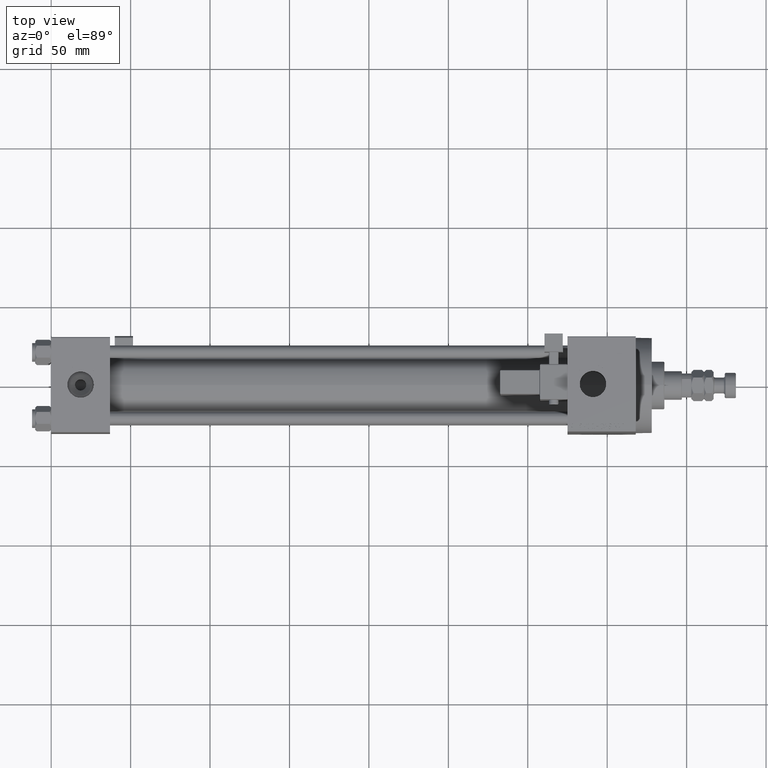
[diagram: clean part render]
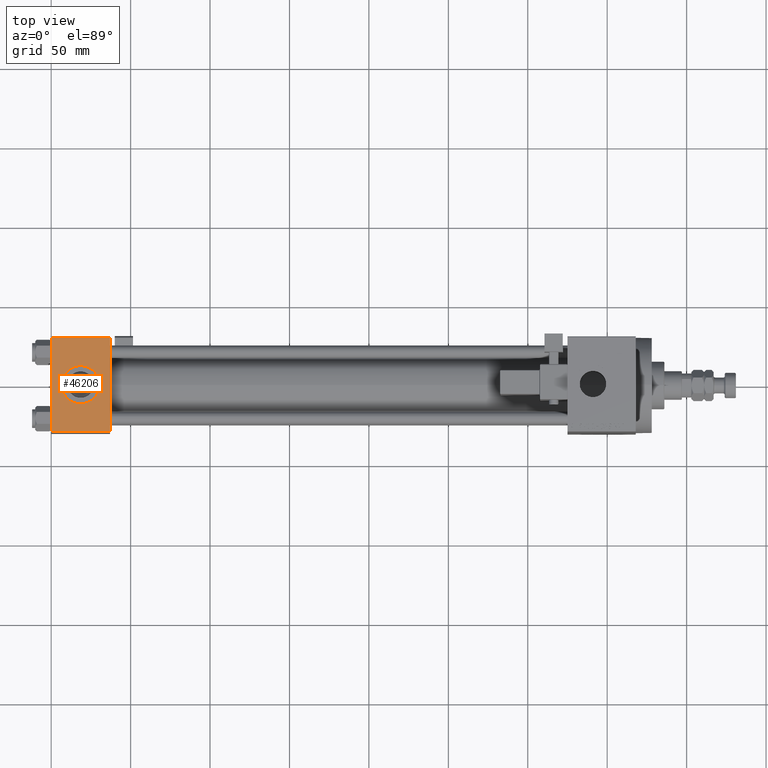
[diagram: same view with one face highlighted and labeled with its STEP entity id]
A machine part, top view. The second image highlights one B-rep face of the part: STEP entity #46206.
In plain terms, the highlighted planar face has unit normal (0, 0, -1).
Its self-contained STEP definition (entity closure, byte-faithful):
#2489 = ORIENTED_EDGE ( 'NONE', *, *, #4666, .T. ) ;
#3032 = AXIS2_PLACEMENT_3D ( 'NONE', #35623, #34855, #7605 ) ;
#4477 = CARTESIAN_POINT ( 'NONE',  ( 37.00000000000000000, 29.99999999999999289, 30.00000000000000000 ) ) ;
#4666 = EDGE_CURVE ( 'NONE', #24122, #18341, #21812, .T. ) ;
#5276 = DIRECTION ( 'NONE',  ( -1.000000000000000000, 0.000000000000000000, 0.000000000000000000 ) ) ;
#6316 = DIRECTION ( 'NONE',  ( 0.000000000000000000, 0.000000000000000000, 1.000000000000000000 ) ) ;
#6344 = VECTOR ( 'NONE', #21043, 1000.000000000000000 ) ;
#6839 = CARTESIAN_POINT ( 'NONE',  ( 37.00000000000000000, -29.50000000000000000, 29.99999999999999289 ) ) ;
#7528 = VERTEX_POINT ( 'NONE', #43038 ) ;
#7605 = DIRECTION ( 'NONE',  ( 1.000000000000000000, 0.000000000000000000, 0.000000000000000000 ) ) ;
#7715 = VECTOR ( 'NONE', #5276, 1000.000000000000000 ) ;
#8256 = EDGE_CURVE ( 'NONE', #18341, #20610, #34871, .T. ) ;
#13385 = PLANE ( 'NONE',  #30353 ) ;
#13564 = ORIENTED_EDGE ( 'NONE', *, *, #36033, .T. ) ;
#13769 = VERTEX_POINT ( 'NONE', #26151 ) ;
#14539 = EDGE_LOOP ( 'NONE', ( #2489, #38414, #16476, #13564 ) ) ;
#16476 = ORIENTED_EDGE ( 'NONE', *, *, #43598, .F. ) ;
#18341 = VERTEX_POINT ( 'NONE', #21692 ) ;
#18763 = CIRCLE ( 'NONE', #3032, 12.00000000000000000 ) ;
#18768 = AXIS2_PLACEMENT_3D ( 'NONE', #34608, #6316, #41889 ) ;
#20610 = VERTEX_POINT ( 'NONE', #43949 ) ;
#21043 = DIRECTION ( 'NONE',  ( 0.000000000000000000, -1.000000000000000000, -1.156482317317871725E-16 ) ) ;
#21692 = CARTESIAN_POINT ( 'NONE',  ( 0.000000000000000000, -29.49999999999998579, 29.99999999999999289 ) ) ;
#21812 = LINE ( 'NONE', #45978, #26457 ) ;
#23860 = DIRECTION ( 'NONE',  ( 0.000000000000000000, 1.156482317317871725E-16, -1.000000000000000000 ) ) ;
#24122 = VERTEX_POINT ( 'NONE', #46098 ) ;
#24191 = VERTEX_POINT ( 'NONE', #41690 ) ;
#24985 = ORIENTED_EDGE ( 'NONE', *, *, #43369, .F. ) ;
#25576 = FACE_BOUND ( 'NONE', #47812, .T. ) ;
#26151 = CARTESIAN_POINT ( 'NONE',  ( 37.00000000000000000, 29.49999999999999289, 30.00000000000000000 ) ) ;
#26457 = VECTOR ( 'NONE', #37675, 1000.000000000000000 ) ;
#28022 = CARTESIAN_POINT ( 'NONE',  ( 37.00000000000000000, 29.99999999999999289, 30.00000000000000000 ) ) ;
#30353 = AXIS2_PLACEMENT_3D ( 'NONE', #28022, #23860, #33378 ) ;
#32751 = LINE ( 'NONE', #4477, #6344 ) ;
#32790 = LINE ( 'NONE', #48615, #7715 ) ;
#33378 = DIRECTION ( 'NONE',  ( 0.000000000000000000, 1.000000000000000000, 1.156482317317871725E-16 ) ) ;
#34608 = CARTESIAN_POINT ( 'NONE',  ( 18.50000000000000000, -3.469446951953614978E-15, 29.99999999999999645 ) ) ;
#34855 = DIRECTION ( 'NONE',  ( 0.000000000000000000, 0.000000000000000000, 1.000000000000000000 ) ) ;
#34871 = LINE ( 'NONE', #6839, #39044 ) ;
#35345 = CIRCLE ( 'NONE', #18768, 12.00000000000000000 ) ;
#35623 = CARTESIAN_POINT ( 'NONE',  ( 18.50000000000000000, -3.469446951953614978E-15, 29.99999999999999645 ) ) ;
#36033 = EDGE_CURVE ( 'NONE', #13769, #24122, #32790, .T. ) ;
#37221 = ORIENTED_EDGE ( 'NONE', *, *, #45880, .F. ) ;
#37675 = DIRECTION ( 'NONE',  ( 0.000000000000000000, -1.000000000000000000, -1.156482317317871725E-16 ) ) ;
#38414 = ORIENTED_EDGE ( 'NONE', *, *, #8256, .T. ) ;
#39044 = VECTOR ( 'NONE', #50685, 1000.000000000000000 ) ;
#41156 = FACE_OUTER_BOUND ( 'NONE', #14539, .T. ) ;
#41690 = CARTESIAN_POINT ( 'NONE',  ( 30.50000000000000000, -3.469446951953614978E-15, 29.99999999999999645 ) ) ;
#41889 = DIRECTION ( 'NONE',  ( 1.000000000000000000, 0.000000000000000000, 0.000000000000000000 ) ) ;
#43038 = CARTESIAN_POINT ( 'NONE',  ( 6.499999999999997335, -1.999870792976790833E-15, 29.99999999999999645 ) ) ;
#43369 = EDGE_CURVE ( 'NONE', #24191, #7528, #35345, .T. ) ;
#43598 = EDGE_CURVE ( 'NONE', #13769, #20610, #32751, .T. ) ;
#43949 = CARTESIAN_POINT ( 'NONE',  ( 37.00000000000000000, -29.49999999999998579, 29.99999999999999289 ) ) ;
#45880 = EDGE_CURVE ( 'NONE', #7528, #24191, #18763, .T. ) ;
#45978 = CARTESIAN_POINT ( 'NONE',  ( 0.000000000000000000, 29.99999999999999289, 30.00000000000000000 ) ) ;
#46098 = CARTESIAN_POINT ( 'NONE',  ( 0.000000000000000000, 29.49999999999999289, 30.00000000000000000 ) ) ;
#46206 = ADVANCED_FACE ( 'NONE', ( #25576, #41156 ), #13385, .F. ) ;
#47812 = EDGE_LOOP ( 'NONE', ( #24985, #37221 ) ) ;
#48615 = CARTESIAN_POINT ( 'NONE',  ( 0.000000000000000000, 29.49999999999999289, 30.00000000000000000 ) ) ;
#50685 = DIRECTION ( 'NONE',  ( 1.000000000000000000, 0.000000000000000000, 0.000000000000000000 ) ) ;